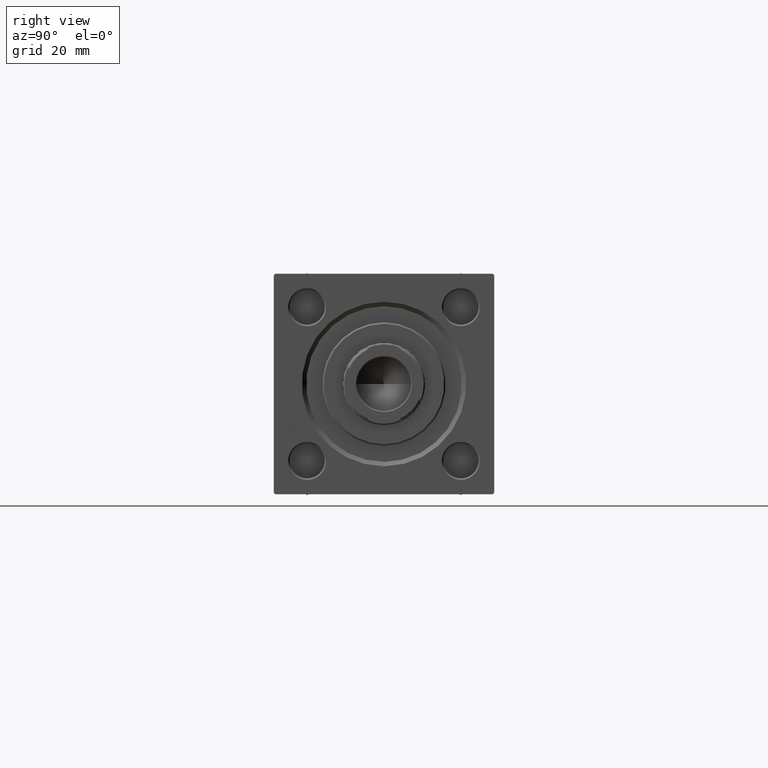
[diagram: clean part render]
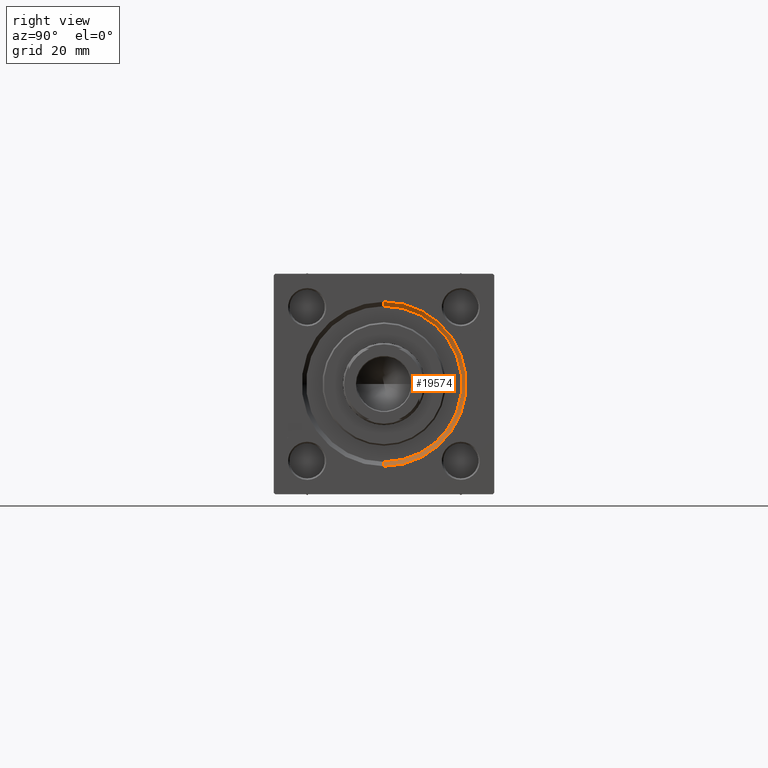
[diagram: same view with one face highlighted and labeled with its STEP entity id]
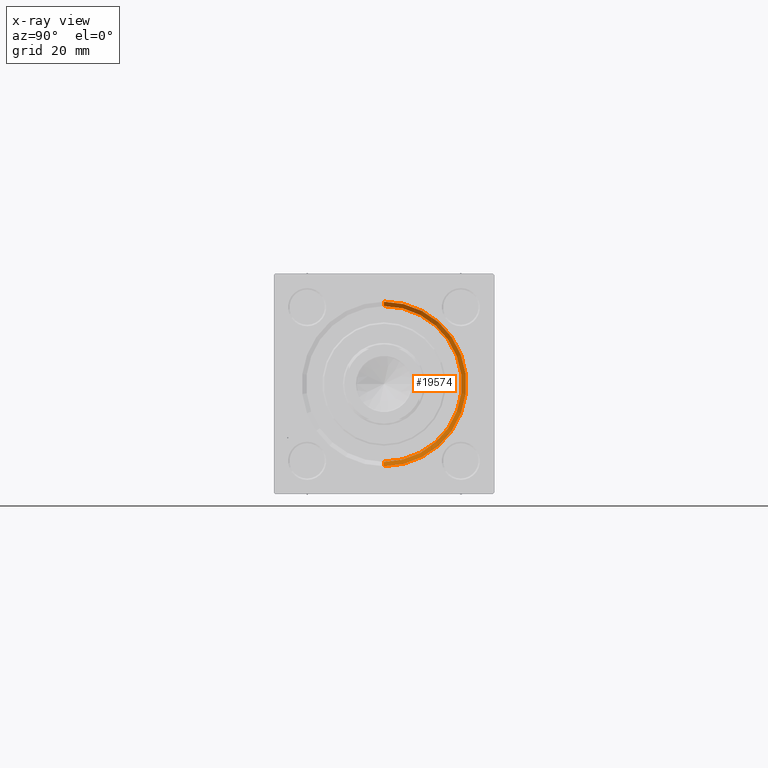
[diagram: x-ray of the same camera — body ghosted, the highlighted face saturated]
A machine part, right view. The second image highlights one B-rep face of the part: STEP entity #19574.
The next image is the same camera in x-ray: the body ghosted, the highlighted face saturated — about 0% of this face is hidden behind the body in this view.
In plain terms, the highlighted conical surface has half-angle 45 deg.
Its self-contained STEP definition (entity closure, byte-faithful):
#338 = AXIS2_PLACEMENT_3D ( 'NONE', #4236, #27615, #50200 ) ;
#1764 = LINE ( 'NONE', #36550, #2091 ) ;
#2091 = VECTOR ( 'NONE', #6075, 1000.000000000000000 ) ;
#4236 = CARTESIAN_POINT ( 'NONE',  ( 182.5000000000000284, 0.000000000000000000, 0.000000000000000000 ) ) ;
#5801 = LINE ( 'NONE', #22807, #8966 ) ;
#6075 = DIRECTION ( 'NONE',  ( 0.7071067811865426878, 8.659560562354993255E-17, 0.7071067811865524577 ) ) ;
#7724 = EDGE_CURVE ( 'NONE', #20375, #40462, #1764, .T. ) ;
#8966 = VECTOR ( 'NONE', #26615, 1000.000000000000000 ) ;
#9379 = CARTESIAN_POINT ( 'NONE',  ( 182.5000000000000284, 0.000000000000000000, -26.50000000000000355 ) ) ;
#9387 = DIRECTION ( 'NONE',  ( -1.000000000000000000, -0.000000000000000000, 0.000000000000000000 ) ) ;
#12395 = CIRCLE ( 'NONE', #24594, 27.99999999999999645 ) ;
#12971 = CARTESIAN_POINT ( 'NONE',  ( 182.5000000000000284, 0.000000000000000000, 0.000000000000000000 ) ) ;
#19574 = ADVANCED_FACE ( 'NONE', ( #47226 ), #27642, .F. ) ;
#20375 = VERTEX_POINT ( 'NONE', #36572 ) ;
#22807 = CARTESIAN_POINT ( 'NONE',  ( 182.5000000000000284, 0.000000000000000000, -26.50000000000000355 ) ) ;
#23803 = EDGE_CURVE ( 'NONE', #44580, #40843, #5801, .T. ) ;
#24594 = AXIS2_PLACEMENT_3D ( 'NONE', #25374, #9387, #40841 ) ;
#25374 = CARTESIAN_POINT ( 'NONE',  ( 184.0000000000000000, 0.000000000000000000, 0.000000000000000000 ) ) ;
#26615 = DIRECTION ( 'NONE',  ( 0.7071067811865426878, 0.000000000000000000, -0.7071067811865524577 ) ) ;
#27615 = DIRECTION ( 'NONE',  ( 1.000000000000000000, 0.000000000000000000, 0.000000000000000000 ) ) ;
#27642 = CONICAL_SURFACE ( 'NONE', #44651, 26.50000000000000355, 0.7853981633974552734 ) ;
#27965 = DIRECTION ( 'NONE',  ( 1.000000000000000000, 0.000000000000000000, 0.000000000000000000 ) ) ;
#28216 = DIRECTION ( 'NONE',  ( 0.000000000000000000, 0.000000000000000000, -1.000000000000000000 ) ) ;
#28814 = EDGE_CURVE ( 'NONE', #40462, #40843, #12395, .T. ) ;
#32367 = ORIENTED_EDGE ( 'NONE', *, *, #23803, .T. ) ;
#32436 = EDGE_CURVE ( 'NONE', #44580, #20375, #35183, .T. ) ;
#33869 = EDGE_LOOP ( 'NONE', ( #38744, #35507, #32367, #49922 ) ) ;
#35183 = CIRCLE ( 'NONE', #338, 26.50000000000000355 ) ;
#35507 = ORIENTED_EDGE ( 'NONE', *, *, #32436, .F. ) ;
#36550 = CARTESIAN_POINT ( 'NONE',  ( 182.5000000000000284, 3.245314017740486554E-15, 26.50000000000000355 ) ) ;
#36572 = CARTESIAN_POINT ( 'NONE',  ( 182.5000000000000284, 3.245314017740486554E-15, 26.50000000000000355 ) ) ;
#38744 = ORIENTED_EDGE ( 'NONE', *, *, #7724, .F. ) ;
#40462 = VERTEX_POINT ( 'NONE', #44562 ) ;
#40841 = DIRECTION ( 'NONE',  ( 0.000000000000000000, 0.000000000000000000, 1.000000000000000000 ) ) ;
#40843 = VERTEX_POINT ( 'NONE', #49313 ) ;
#44562 = CARTESIAN_POINT ( 'NONE',  ( 184.0000000000000000, 3.429011037612588881E-15, 27.99999999999999645 ) ) ;
#44580 = VERTEX_POINT ( 'NONE', #9379 ) ;
#44651 = AXIS2_PLACEMENT_3D ( 'NONE', #12971, #27965, #28216 ) ;
#47226 = FACE_OUTER_BOUND ( 'NONE', #33869, .T. ) ;
#49313 = CARTESIAN_POINT ( 'NONE',  ( 184.0000000000000000, 0.000000000000000000, -27.99999999999999645 ) ) ;
#49922 = ORIENTED_EDGE ( 'NONE', *, *, #28814, .F. ) ;
#50200 = DIRECTION ( 'NONE',  ( 0.000000000000000000, 0.000000000000000000, 1.000000000000000000 ) ) ;